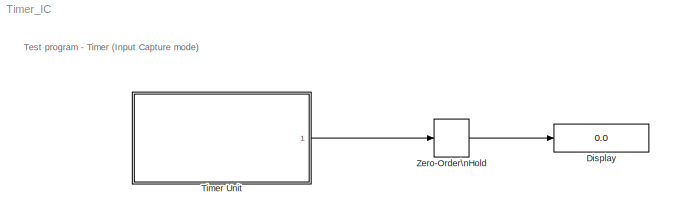
MODEL Timer_IC
KIND model
BLOCK [Display] Display
  Decimation = 1
  Ports = [1]
  SID = 1
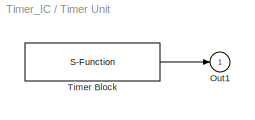
BLOCK [SubSystem] Timer Unit
  Ports = [0, 1]
  RequestExecContextInheritance = off
  SID = 4
  ShowPortLabels = none
  Tag = mcTarget_timer
BLOCK [Outport] Timer Unit/Out1
  IconDisplay = Port number
  SID = 4:1
BLOCK [S-Function] Timer Unit/Timer Block
  EnableBusSupport = off
  FunctionName = timer_sfcn_9S12
  Parameters = sampletime, timerMode
  Ports = [0, 1]
  SFcnIsStateOwnerBlock = off
  SFunctionDeploymentMode = off
  SID = 4:6
  Tag = mcTarget_timer
BLOCK [ZeroOrderHold] Zero-Order\nHold
  SID = 3
  SampleTime = 0.1
ANNOTATION (root): Test program - Timer (Input Capture mode)
LINE Timer Unit/Timer Block:1 -> Timer Unit/Out1:1
LINE Timer Unit:1 -> Zero-Order\nHold:1
LINE Zero-Order\nHold:1 -> Display:1
